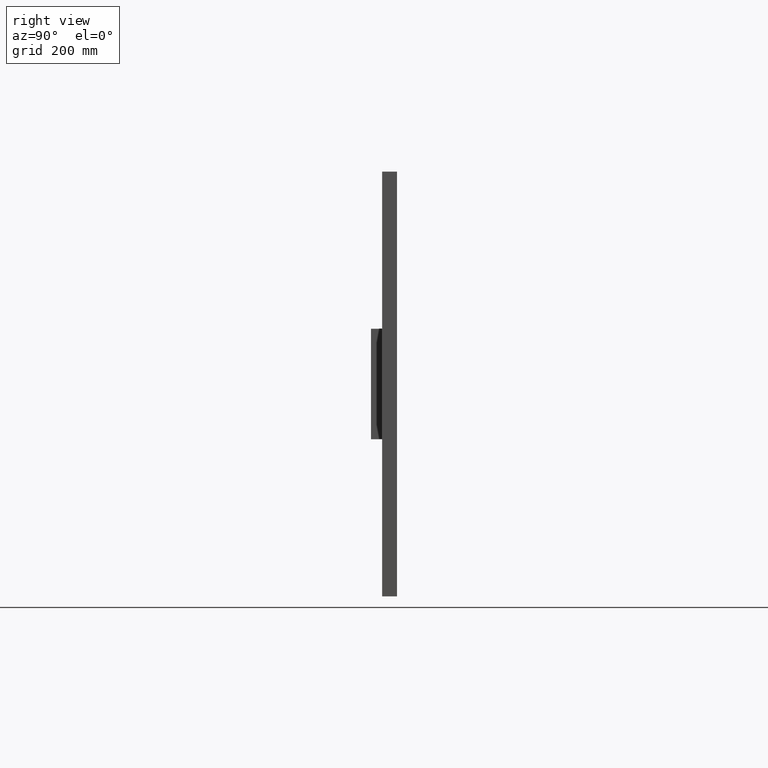
[diagram: clean part render]
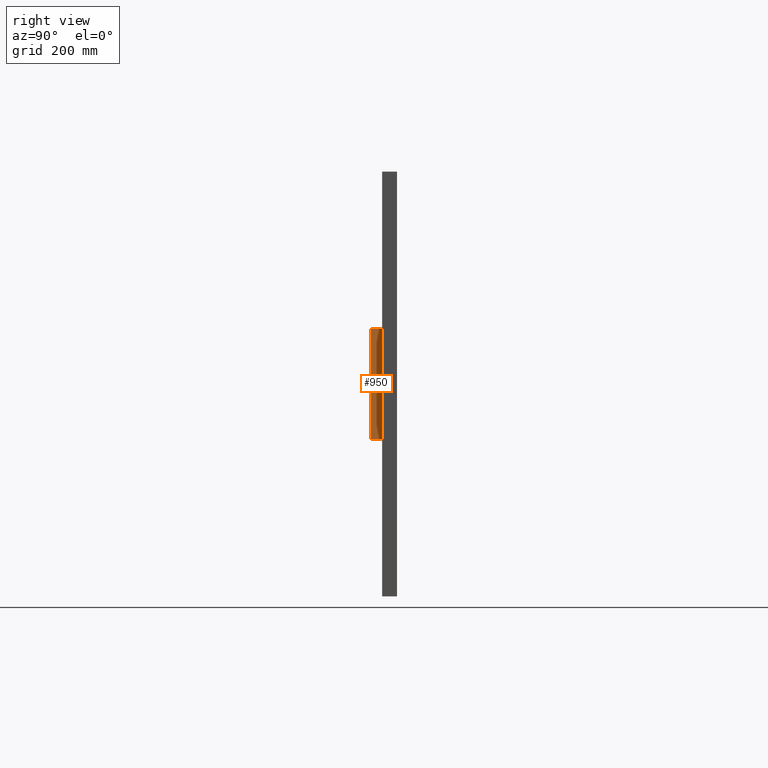
[diagram: same view with one face highlighted and labeled with its STEP entity id]
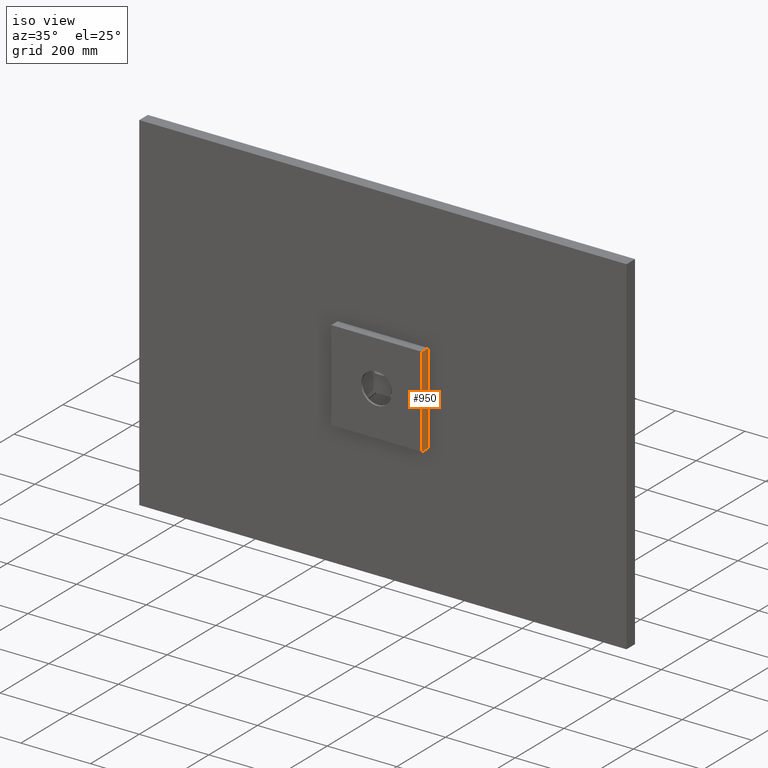
[diagram: same view with one face highlighted and labeled with its STEP entity id]
A machine part, right view. The second image highlights one B-rep face of the part: STEP entity #950.
A second angle (iso view) of the same face is appended — the face is thin or edge-on in the first view.
In plain terms, the highlighted planar face has unit normal (-1, 0, -0).
Its self-contained STEP definition (entity closure, byte-faithful):
#58 = VECTOR ( 'NONE', #1078, 1000.000000000000000 ) ;
#90 = CARTESIAN_POINT ( 'NONE',  ( 130.0000000000008000, -25.99999999999980100, 130.0000000000001700 ) ) ;
#132 = DIRECTION ( 'NONE',  ( -1.000000000000000000, 0.0000000000000000000, -1.067522139062650700E-016 ) ) ;
#174 = VERTEX_POINT ( 'NONE', #1794 ) ;
#207 = LINE ( 'NONE', #1450, #3116 ) ;
#269 = CARTESIAN_POINT ( 'NONE',  ( 130.0000000000008000, -25.99999999999980100, 130.0000000000001700 ) ) ;
#707 = VERTEX_POINT ( 'NONE', #2448 ) ;
#781 = VECTOR ( 'NONE', #911, 1000.000000000000000 ) ;
#906 = EDGE_CURVE ( 'NONE', #174, #2109, #1379, .T. ) ;
#911 = DIRECTION ( 'NONE',  ( -1.067522139062650400E-016, -0.0000000000000000000, 1.000000000000000000 ) ) ;
#913 = PLANE ( 'NONE',  #2115 ) ;
#928 = ORIENTED_EDGE ( 'NONE', *, *, #2137, .F. ) ;
#950 = ADVANCED_FACE ( 'NONE', ( #2096 ), #913, .F. ) ;
#1078 = DIRECTION ( 'NONE',  ( -1.067522139062650400E-016, -0.0000000000000000000, 1.000000000000000000 ) ) ;
#1379 = LINE ( 'NONE', #1699, #781 ) ;
#1392 = DIRECTION ( 'NONE',  ( -1.067522139062650700E-016, 0.0000000000000000000, 1.000000000000000000 ) ) ;
#1419 = VERTEX_POINT ( 'NONE', #2468 ) ;
#1450 = CARTESIAN_POINT ( 'NONE',  ( 130.0000000000008000, -25.99999999999980100, -129.9999999999998900 ) ) ;
#1471 = LINE ( 'NONE', #2369, #58 ) ;
#1508 = ORIENTED_EDGE ( 'NONE', *, *, #1579, .T. ) ;
#1579 = EDGE_CURVE ( 'NONE', #1419, #707, #1471, .T. ) ;
#1668 = CARTESIAN_POINT ( 'NONE',  ( 130.0000000000008000, -25.99999999999980100, 130.0000000000001700 ) ) ;
#1699 = CARTESIAN_POINT ( 'NONE',  ( 130.0000000000008000, -25.99999999999980100, 130.0000000000001700 ) ) ;
#1794 = CARTESIAN_POINT ( 'NONE',  ( 130.0000000000008000, -25.99999999999980100, -129.9999999999998900 ) ) ;
#2096 = FACE_OUTER_BOUND ( 'NONE', #3044, .T. ) ;
#2109 = VERTEX_POINT ( 'NONE', #90 ) ;
#2115 = AXIS2_PLACEMENT_3D ( 'NONE', #1668, #132, #1392 ) ;
#2137 = EDGE_CURVE ( 'NONE', #2109, #707, #2454, .T. ) ;
#2369 = CARTESIAN_POINT ( 'NONE',  ( 130.0000000000008000, 0.0000000000000000000, 130.0000000000001700 ) ) ;
#2382 = DIRECTION ( 'NONE',  ( -0.0000000000000000000, 1.000000000000000000, -0.0000000000000000000 ) ) ;
#2448 = CARTESIAN_POINT ( 'NONE',  ( 130.0000000000008000, 0.0000000000000000000, 130.0000000000001700 ) ) ;
#2454 = LINE ( 'NONE', #269, #2538 ) ;
#2468 = CARTESIAN_POINT ( 'NONE',  ( 130.0000000000008000, 0.0000000000000000000, -129.9999999999998900 ) ) ;
#2538 = VECTOR ( 'NONE', #2382, 1000.000000000000000 ) ;
#2643 = EDGE_CURVE ( 'NONE', #174, #1419, #207, .T. ) ;
#2749 = DIRECTION ( 'NONE',  ( -0.0000000000000000000, 1.000000000000000000, -0.0000000000000000000 ) ) ;
#2891 = ORIENTED_EDGE ( 'NONE', *, *, #906, .F. ) ;
#3044 = EDGE_LOOP ( 'NONE', ( #1508, #928, #2891, #3117 ) ) ;
#3116 = VECTOR ( 'NONE', #2749, 1000.000000000000000 ) ;
#3117 = ORIENTED_EDGE ( 'NONE', *, *, #2643, .T. ) ;